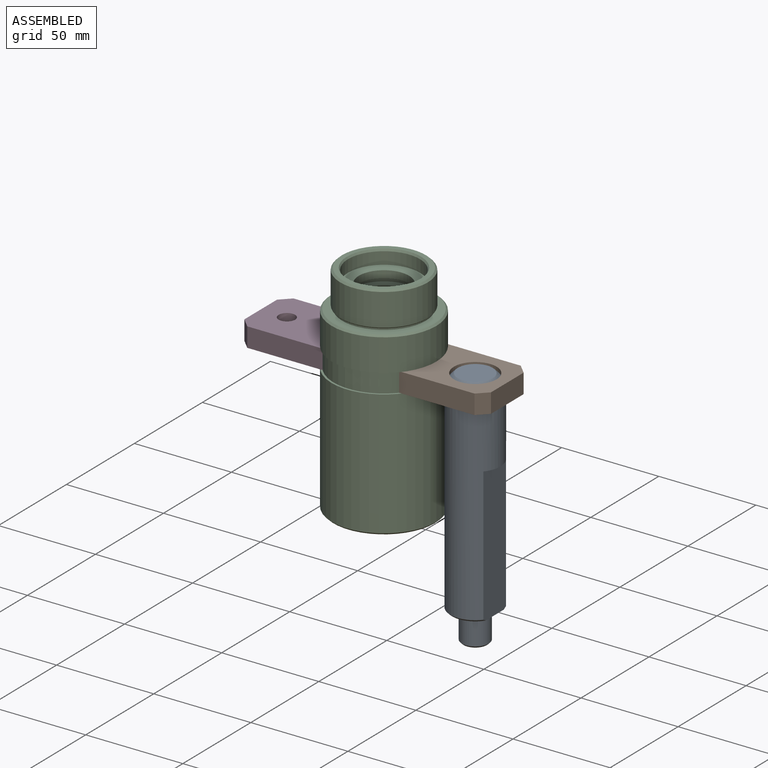
[diagram: assembled view]
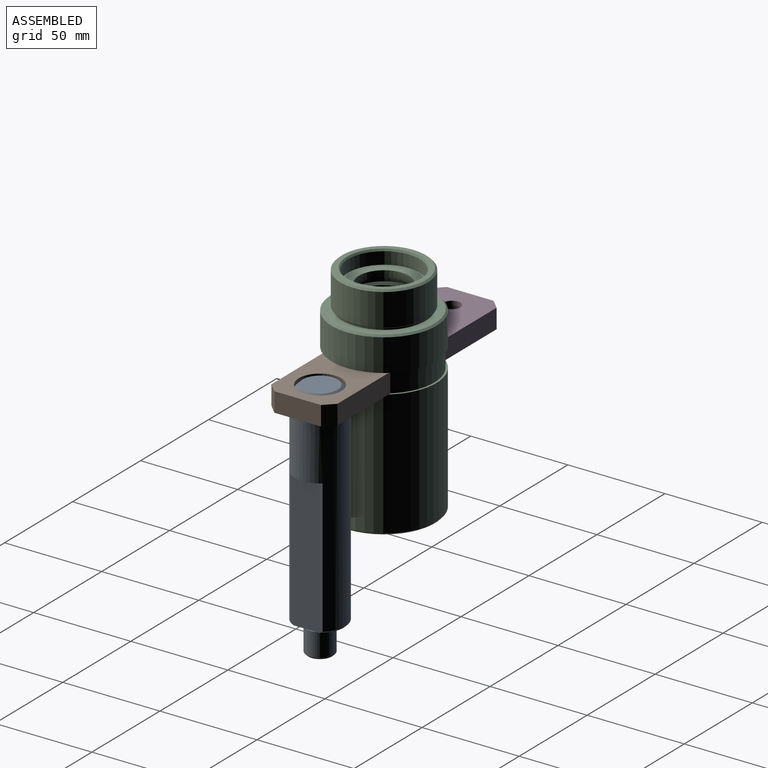
[diagram: assembled view, second angle]
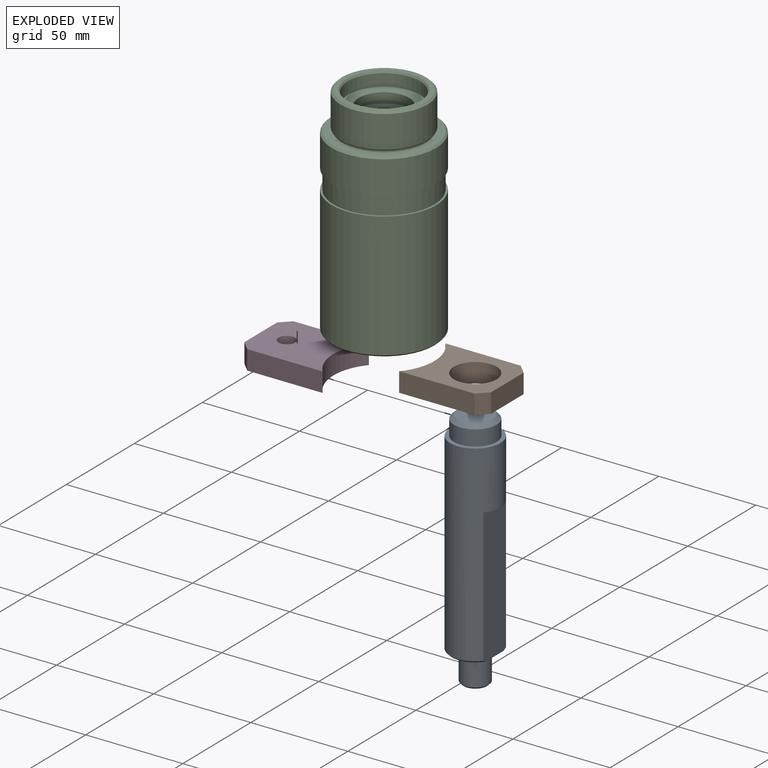
[diagram: exploded view]
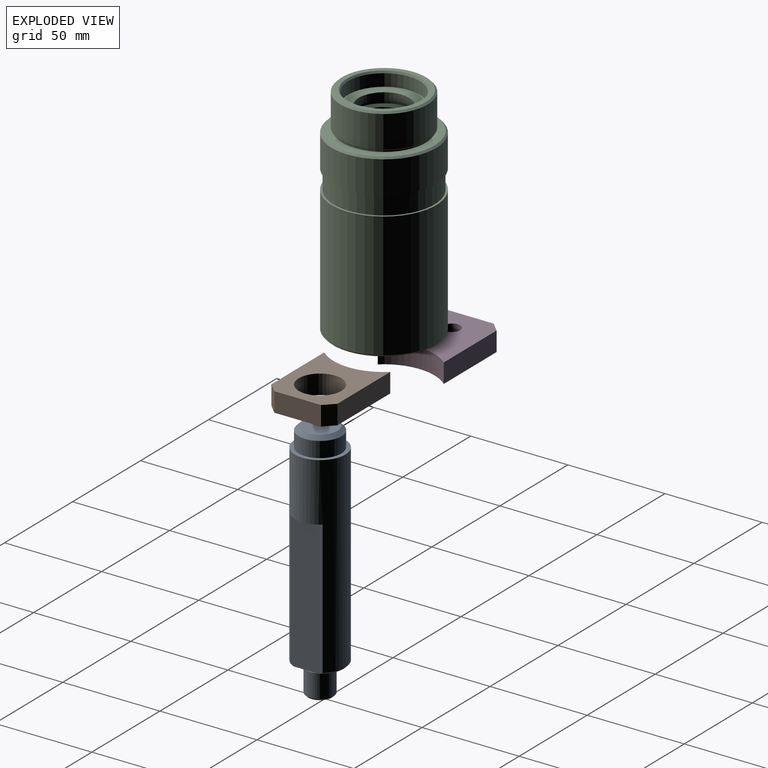
[diagram: exploded view, second angle]
ASSEMBLY  parts=4 mates=3
PART A: 17 faces, bbox 26.1x26.1x125.1 mm
  f0: plane 24x20mm, normal (0,0,-1), area 310.7mm2, adj f2,f3,f7,f14,f16
  f1: cylinder r=13mm len=99mm, axis (0,0,1), area 5599.4mm2, adj f2,f3,f8,f13,f14,f15,f16
  f2: cone r=13mm half-angle=45deg, axis (0,0,1), area 32.9mm2, adj f0,f1,f14,f16
  f3: cone r=13mm half-angle=45deg, axis (0,0,1), area 32.9mm2, adj f0,f1,f14,f16
  f4: plane 12x12mm, normal (0,0,-1), area 113.1mm2, adj f11
  f5: cylinder r=7mm len=14mm, axis (0,0,1), area 527.8mm2, adj f6,f11
  f6: plane 14x14mm, normal (0,0,1), area 48.3mm2, adj f5,f7
  f7: cylinder r=5.8mm len=11.6mm, axis (0,0,1), area 72.9mm2, adj f0,f6
  f8: plane 26x26mm, normal (0,0,1), area 150.8mm2, adj f1,f9
  f9: cylinder r=11mm len=22mm, axis (0,0,1), area 552.9mm2, adj f8,f12
  f10: plane 18x18mm, normal (0,0,1), area 254.5mm2, adj f12
  f11: cone r=7mm half-angle=45deg, axis (0,0,1), area 57.8mm2, adj f4,f5
  f12: cone r=9mm half-angle=45deg, axis (0,0,-1), area 177.7mm2, adj f9,f10
  f13: plane 16.61x3mm, normal (0,0,-1), area 34.1mm2, adj f1,f14
  f14: plane 70.08x16.69mm, normal (1,0,0), area 1161.3mm2, adj f0,f1,f2,f3,f13
  f15: plane 16.61x3mm, normal (0,0,-1), area 34.1mm2, adj f1,f16
  f16: plane 70.08x16.69mm, normal (-1,0,0), area 1161.3mm2, adj f0,f1,f2,f3,f15
PART B: 9 faces, bbox 43.8x10x34 mm
  f0: cylinder r=26mm len=34mm, axis (0,1,0), area 370.6mm2, adj f1,f3,f5,f6
  f1: plane 38.83x10mm, normal (0,0,1), area 388.3mm2, adj f0,f5,f6,f8
  f2: plane 24x10mm, normal (-1,0,0), area 240mm2, adj f5,f6,f7,f8
  f3: plane 38.83x10mm, normal (0,0,-1), area 388.3mm2, adj f0,f5,f6,f7
  f4: cylinder r=11mm len=22mm, axis (0,1,0), area 691.2mm2, adj f5,f6
  f5: plane 43.83x34mm, normal (0,-1,0), area 937.7mm2, adj f0,f1,f2,f3,f4,f7,f8
  f6: plane 43.83x34mm, normal (0,1,0), area 937.7mm2, adj f0,f1,f2,f3,f4,f7,f8
  f7: plane 10x5mm, normal (-0.71,0,-0.71), area 70.7mm2, adj f2,f3,f5,f6
  f8: plane 10x5mm, normal (-0.71,0,0.71), area 70.7mm2, adj f1,f2,f5,f6
PART C: 36 faces, bbox 54x54x112 mm
  f0: cylinder r=26mm len=52mm, axis (0,0,-1), area 1633.6mm2, adj f1,f28
  f1: plane 54x54mm, normal (0,0,-1), area 166.5mm2, adj f0,f2
  f2: cylinder r=27mm len=54mm, axis (0,0,-1), area 2816.1mm2, adj f1,f32
  f3: plane 52.2x52.2mm, normal (0,0,1), area 687.9mm2, adj f4,f32
  f4: cylinder r=21.5mm len=43mm, axis (0,0,-1), area 135.1mm2, adj f3,f5
  f5: plane 44x44mm, normal (0,0,-1), area 68.3mm2, adj f4,f35
  f6: cylinder r=22.5mm len=45mm, axis (0,0,-1), area 2346.8mm2, adj f33,f35
  f7: plane 43.2x43.2mm, normal (0,0,1), area 322.4mm2, adj f33,f34
  f8: cylinder r=18.5mm len=37mm, axis (0,0,-1), area 732.3mm2, adj f9,f34
  f9: plane 37x37mm, normal (0,0,1), area 544.3mm2, adj f8,f10
  f10: cylinder r=13mm len=26mm, axis (0,0,-1), area 302.2mm2, adj f9,f11
  f11: plane 33.5x33.5mm, normal (0,0,-1), area 350.5mm2, adj f10,f12
  f12: cylinder r=16.75mm len=33.5mm, axis (0,0,-1), area 336.8mm2, adj f11,f13
  f13: plane 33.5x33.5mm, normal (0,0,1), area 350.5mm2, adj f12,f14
  f14: cylinder r=13mm len=26mm, axis (0,0,-1), area 702.5mm2, adj f13,f29
  f15: plane 40.2x40.2mm, normal (0,0,-1), area 662.2mm2, adj f29,f30
  f16: plane 47x47mm, normal (0,0,-1), area 401.8mm2, adj f17,f30
  f17: cylinder r=23.5mm len=47mm, axis (0,0,-1), area 2111.5mm2, adj f16,f18
  f18: plane 47.5x47.5mm, normal (0,0,-1), area 37.1mm2, adj f17,f19
  f19: cylinder r=23.75mm len=49.2mm, axis (0,0,-1), area 7341.9mm2, adj f18,f20
  f20: plane 47.5x47.5mm, normal (0,0,1), area 37.1mm2, adj f19,f21
  f21: cylinder r=23.5mm len=47mm, axis (0,0,-1), area 1919.5mm2, adj f20,f22
  f22: plane 50x50mm, normal (0,0,-1), area 228.6mm2, adj f21,f23
  f23: cylinder r=25mm len=50mm, axis (0,0,-1), area 392.7mm2, adj f22,f24
  f24: plane 50x50mm, normal (0,0,1), area 123.7mm2, adj f23,f25
  f25: cylinder r=24.2mm len=48.4mm, axis (0,0,-1), area 1338.1mm2, adj f24,f26
  f26: plane 52.2x52.2mm, normal (0,0,-1), area 300.2mm2, adj f25,f31
  f27: cylinder r=27mm len=64.6mm, axis (0,0,-1), area 10959.1mm2, adj f28,f31
  f28: plane 54x54mm, normal (0,0,1), area 166.5mm2, adj f0,f27
  f29: cone r=13mm half-angle=45deg, axis (0,0,-1), area 107.6mm2, adj f14,f15
  f30: cone r=20.1mm half-angle=45deg, axis (0,0,-1), area 90.4mm2, adj f15,f16
  f31: cone r=26.1mm half-angle=45deg, axis (0,0,1), area 212.3mm2, adj f26,f27
  f32: cone r=27mm half-angle=45deg, axis (0,0,-1), area 212.3mm2, adj f2,f3
  f33: cone r=22.5mm half-angle=45deg, axis (0,0,-1), area 176.3mm2, adj f6,f7
  f34: cone r=19.08mm half-angle=30deg, axis (0,0,1), area 136.3mm2, adj f7,f8
  f35: cone r=22mm half-angle=45deg, axis (0,0,1), area 98.9mm2, adj f5,f6
PART D: 9 faces, bbox 43.8x10x34 mm
  f0: cylinder r=26mm len=34mm, axis (0,-1,0), area 370.6mm2, adj f1,f3,f4,f5
  f1: plane 38.83x10mm, normal (0,0,1), area 388.3mm2, adj f0,f4,f5,f7
  f2: plane 24x10mm, normal (-1,0,0), area 240mm2, adj f4,f5,f6,f7
  f3: plane 38.83x10mm, normal (0,0,-1), area 388.3mm2, adj f0,f4,f5,f6
  f4: plane 43.83x34mm, normal (0,1,0), area 1261.1mm2, adj f0,f1,f2,f3,f6,f7,f8
  f5: plane 43.83x34mm, normal (0,-1,0), area 1261.1mm2, adj f0,f1,f2,f3,f6,f7,f8
  f6: plane 10x5mm, normal (-0.71,0,-0.71), area 70.7mm2, adj f2,f3,f4,f5
  f7: plane 10x5mm, normal (-0.71,0,0.71), area 70.7mm2, adj f1,f2,f4,f5
  f8: cylinder r=4.25mm len=10mm, axis (0,-1,0), area 267mm2, adj f4,f5
PLACE A t=(71.7,62.7,-32.84)mm
PLACE B rot(axis=(0,0.71,0.71),180deg) t=(71.7,62.7,87.16)mm
PLACE C t=(24.7,62.7,16.66)mm fixed
PLACE D rot(axis=(1,0,0),90deg) t=(-25.3,62.7,82.16)mm
MATE fastened A.f1 <-> B.f4  axis (0,0,1) through (71.7,62.7,82.16)mm
MATE fastened D.f0 <-> C.f0  axis (0,0,-1) through (24.7,62.7,82.16)mm
MATE fastened B.f0 <-> C.f0  axis (0,0,-1) through (24.7,62.7,82.16)mm
